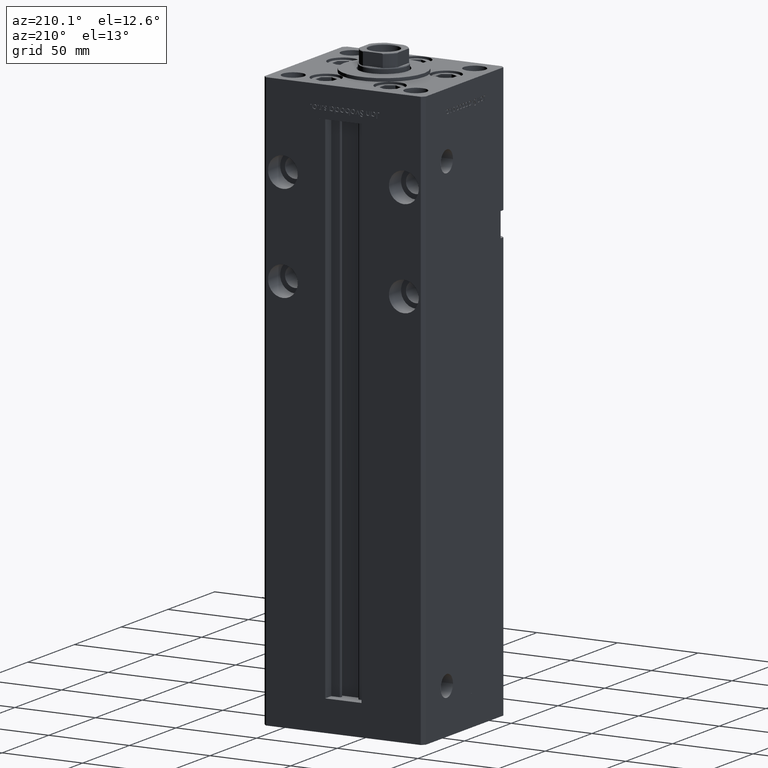
[diagram: clean part render]
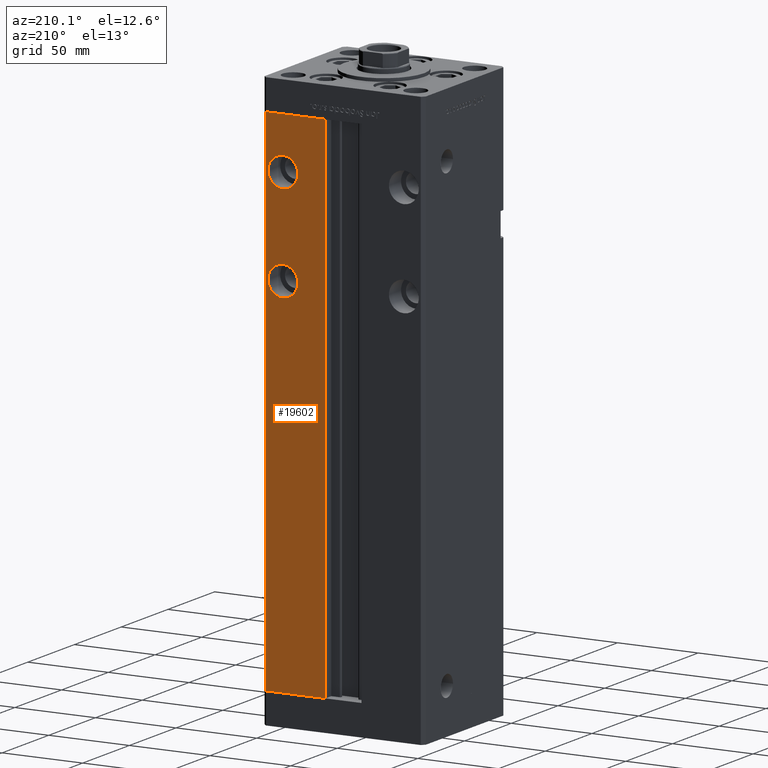
[diagram: same view with one face highlighted and labeled with its STEP entity id]
A machine part, auxiliary view. The second image highlights one B-rep face of the part: STEP entity #19602.
In plain terms, the highlighted planar face has unit normal (0, -1, 0).
Its self-contained STEP definition (entity closure, byte-faithful):
#106 = VERTEX_POINT ( 'NONE', #29155 ) ;
#111 = DIRECTION ( 'NONE',  ( 0.000000000000000000, 0.000000000000000000, 1.000000000000000000 ) ) ;
#655 = FACE_BOUND ( 'NONE', #4825, .T. ) ;
#769 = VERTEX_POINT ( 'NONE', #18443 ) ;
#903 = DIRECTION ( 'NONE',  ( -1.000000000000000000, 0.000000000000000000, 0.000000000000000000 ) ) ;
#1429 = VERTEX_POINT ( 'NONE', #26386 ) ;
#1710 = DIRECTION ( 'NONE',  ( 0.000000000000000000, 0.000000000000000000, -1.000000000000000000 ) ) ;
#2194 = EDGE_CURVE ( 'NONE', #1429, #769, #30944, .T. ) ;
#3029 = CARTESIAN_POINT ( 'NONE',  ( 11.24999999999999645, 43.50000000000000000, 0.000000000000000000 ) ) ;
#3634 = CIRCLE ( 'NONE', #7040, 9.249999999999980460 ) ;
#3857 = AXIS2_PLACEMENT_3D ( 'NONE', #27153, #51943, #5902 ) ;
#4509 = CARTESIAN_POINT ( 'NONE',  ( 37.50000000000000000, 43.50000000000000000, 295.7499999999999432 ) ) ;
#4516 = VERTEX_POINT ( 'NONE', #31186 ) ;
#4825 = EDGE_LOOP ( 'NONE', ( #34351, #11559 ) ) ;
#4997 = EDGE_LOOP ( 'NONE', ( #40335, #9146, #42532, #24725 ) ) ;
#5902 = DIRECTION ( 'NONE',  ( 0.000000000000000000, 0.000000000000000000, 1.000000000000000000 ) ) ;
#7040 = AXIS2_PLACEMENT_3D ( 'NONE', #45071, #36992, #111 ) ;
#8741 = EDGE_CURVE ( 'NONE', #39371, #9689, #20810, .T. ) ;
#9146 = ORIENTED_EDGE ( 'NONE', *, *, #43591, .T. ) ;
#9689 = VERTEX_POINT ( 'NONE', #3029 ) ;
#10504 = DIRECTION ( 'NONE',  ( 1.000000000000000000, 0.000000000000000000, 0.000000000000000000 ) ) ;
#11172 = EDGE_CURVE ( 'NONE', #4516, #18918, #52761, .T. ) ;
#11559 = ORIENTED_EDGE ( 'NONE', *, *, #47204, .F. ) ;
#11569 = CIRCLE ( 'NONE', #3857, 9.249999999999980460 ) ;
#11752 = CIRCLE ( 'NONE', #34952, 9.250000000000008882 ) ;
#12080 = CARTESIAN_POINT ( 'NONE',  ( 48.00000000000000711, 43.50000000000000000, 318.5000000000000000 ) ) ;
#12872 = DIRECTION ( 'NONE',  ( 0.000000000000000000, 0.000000000000000000, -1.000000000000000000 ) ) ;
#17037 = FACE_BOUND ( 'NONE', #45656, .T. ) ;
#18443 = CARTESIAN_POINT ( 'NONE',  ( 37.50000000000000000, 43.50000000000000000, 217.2500000000000000 ) ) ;
#18918 = VERTEX_POINT ( 'NONE', #12080 ) ;
#19367 = CARTESIAN_POINT ( 'NONE',  ( -11.24999999999999645, 43.50000000000000000, 318.5000000000000000 ) ) ;
#19602 = ADVANCED_FACE ( 'NONE', ( #655, #17037, #50174 ), #21866, .F. ) ;
#19742 = AXIS2_PLACEMENT_3D ( 'NONE', #46137, #29149, #33470 ) ;
#20810 = LINE ( 'NONE', #41830, #35470 ) ;
#21080 = CARTESIAN_POINT ( 'NONE',  ( 11.24999999999999645, 43.50000000000000000, 0.000000000000000000 ) ) ;
#21866 = PLANE ( 'NONE',  #19742 ) ;
#22403 = CARTESIAN_POINT ( 'NONE',  ( 37.50000000000000000, 43.50000000000000000, 226.5000000000000000 ) ) ;
#24725 = ORIENTED_EDGE ( 'NONE', *, *, #31810, .T. ) ;
#24774 = EDGE_CURVE ( 'NONE', #106, #39010, #3634, .T. ) ;
#26367 = LINE ( 'NONE', #30411, #28580 ) ;
#26386 = CARTESIAN_POINT ( 'NONE',  ( 37.50000000000000000, 43.50000000000000000, 235.7500000000000284 ) ) ;
#27153 = CARTESIAN_POINT ( 'NONE',  ( 37.50000000000000000, 43.50000000000000000, 286.5000000000000000 ) ) ;
#27898 = ORIENTED_EDGE ( 'NONE', *, *, #24774, .F. ) ;
#28580 = VECTOR ( 'NONE', #30931, 1000.000000000000000 ) ;
#29149 = DIRECTION ( 'NONE',  ( 0.000000000000000000, -1.000000000000000000, 0.000000000000000000 ) ) ;
#29155 = CARTESIAN_POINT ( 'NONE',  ( 37.50000000000000000, 43.50000000000000000, 277.2500000000000000 ) ) ;
#30411 = CARTESIAN_POINT ( 'NONE',  ( 48.00000000000000711, 43.50000000000000000, 318.5000000000000000 ) ) ;
#30751 = DIRECTION ( 'NONE',  ( 0.000000000000000000, 1.000000000000000000, -0.000000000000000000 ) ) ;
#30931 = DIRECTION ( 'NONE',  ( -0.000000000000000000, -0.000000000000000000, -1.000000000000000000 ) ) ;
#30944 = CIRCLE ( 'NONE', #37864, 9.250000000000008882 ) ;
#31186 = CARTESIAN_POINT ( 'NONE',  ( 11.24999999999998934, 43.50000000000000000, 318.5000000000000000 ) ) ;
#31369 = VECTOR ( 'NONE', #36468, 1000.000000000000000 ) ;
#31806 = CARTESIAN_POINT ( 'NONE',  ( 48.00000000000000711, 43.50000000000000000, 0.000000000000000000 ) ) ;
#31810 = EDGE_CURVE ( 'NONE', #18918, #39371, #26367, .T. ) ;
#33338 = DIRECTION ( 'NONE',  ( 0.000000000000000000, 1.000000000000000000, -0.000000000000000000 ) ) ;
#33470 = DIRECTION ( 'NONE',  ( 0.000000000000000000, -0.000000000000000000, -1.000000000000000000 ) ) ;
#34133 = CARTESIAN_POINT ( 'NONE',  ( 37.50000000000000000, 43.50000000000000000, 226.5000000000000000 ) ) ;
#34351 = ORIENTED_EDGE ( 'NONE', *, *, #2194, .F. ) ;
#34952 = AXIS2_PLACEMENT_3D ( 'NONE', #34133, #33338, #12872 ) ;
#35423 = VECTOR ( 'NONE', #10504, 1000.000000000000000 ) ;
#35470 = VECTOR ( 'NONE', #903, 1000.000000000000000 ) ;
#36468 = DIRECTION ( 'NONE',  ( -0.000000000000000000, -0.000000000000000000, 1.000000000000000000 ) ) ;
#36992 = DIRECTION ( 'NONE',  ( 0.000000000000000000, 1.000000000000000000, 0.000000000000000000 ) ) ;
#37013 = EDGE_CURVE ( 'NONE', #39010, #106, #11569, .T. ) ;
#37864 = AXIS2_PLACEMENT_3D ( 'NONE', #22403, #30751, #1710 ) ;
#39010 = VERTEX_POINT ( 'NONE', #4509 ) ;
#39371 = VERTEX_POINT ( 'NONE', #31806 ) ;
#40335 = ORIENTED_EDGE ( 'NONE', *, *, #8741, .T. ) ;
#41309 = LINE ( 'NONE', #21080, #31369 ) ;
#41830 = CARTESIAN_POINT ( 'NONE',  ( -11.24999999999999645, 43.50000000000000000, 0.000000000000000000 ) ) ;
#42532 = ORIENTED_EDGE ( 'NONE', *, *, #11172, .T. ) ;
#43591 = EDGE_CURVE ( 'NONE', #9689, #4516, #41309, .T. ) ;
#45071 = CARTESIAN_POINT ( 'NONE',  ( 37.50000000000000000, 43.50000000000000000, 286.5000000000000000 ) ) ;
#45110 = ORIENTED_EDGE ( 'NONE', *, *, #37013, .F. ) ;
#45656 = EDGE_LOOP ( 'NONE', ( #45110, #27898 ) ) ;
#46137 = CARTESIAN_POINT ( 'NONE',  ( -11.24999999999999645, 43.50000000000000000, 318.5000000000000000 ) ) ;
#47204 = EDGE_CURVE ( 'NONE', #769, #1429, #11752, .T. ) ;
#50174 = FACE_OUTER_BOUND ( 'NONE', #4997, .T. ) ;
#51943 = DIRECTION ( 'NONE',  ( 0.000000000000000000, 1.000000000000000000, 0.000000000000000000 ) ) ;
#52761 = LINE ( 'NONE', #19367, #35423 ) ;